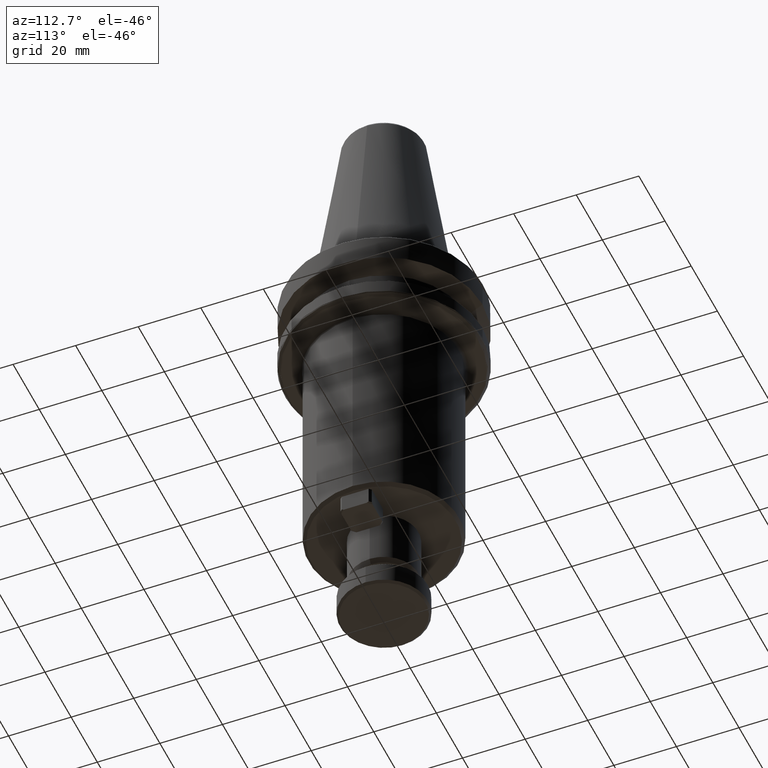
[diagram: clean part render]
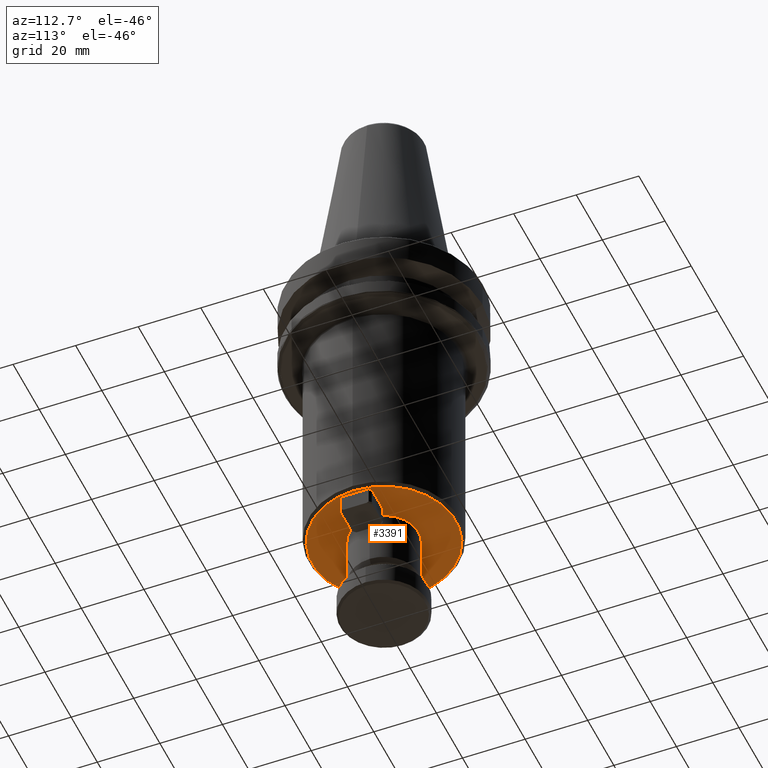
[diagram: same view with one face highlighted and labeled with its STEP entity id]
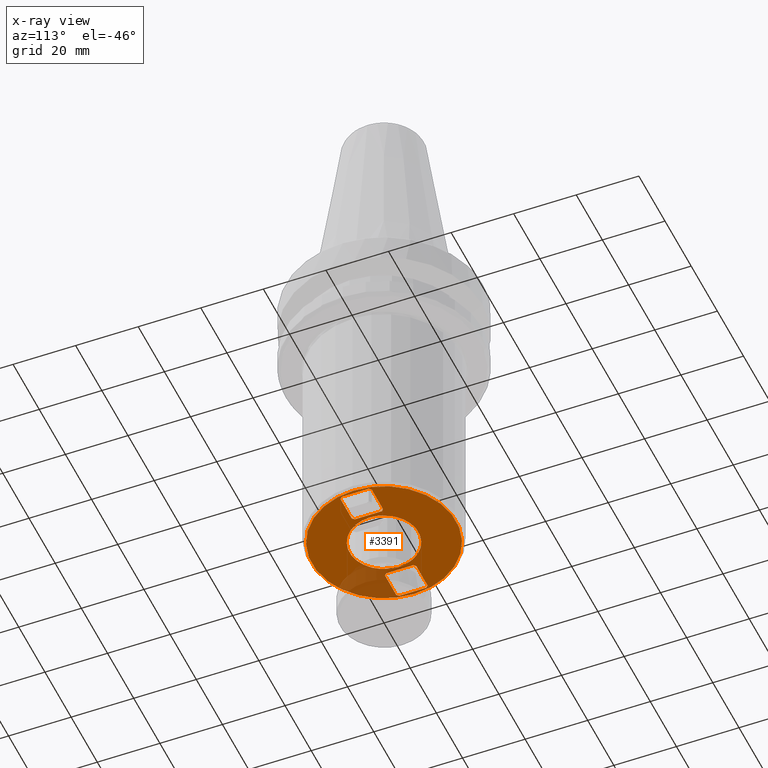
[diagram: x-ray of the same camera — body ghosted, the highlighted face saturated]
A machine part, auxiliary view. The second image highlights one B-rep face of the part: STEP entity #3391.
The next image is the same camera in x-ray: the body ghosted, the highlighted face saturated — about 16% of this face is hidden behind the body in this view.
In plain terms, the highlighted planar face has unit normal (0, 0, 1).
Its self-contained STEP definition (entity closure, byte-faithful):
#5 = DIRECTION ( 'NONE',  ( 0.7071067811865470200, 0.7071067811865479100, 0.0000000000000000000 ) ) ;
#19 = ORIENTED_EDGE ( 'NONE', *, *, #3478, .T. ) ;
#27 = ORIENTED_EDGE ( 'NONE', *, *, #3134, .T. ) ;
#32 = VERTEX_POINT ( 'NONE', #429 ) ;
#34 = EDGE_CURVE ( 'NONE', #3352, #3039, #1690, .T. ) ;
#62 = ORIENTED_EDGE ( 'NONE', *, *, #3319, .F. ) ;
#107 = DIRECTION ( 'NONE',  ( -0.7071067811865470200, 0.7071067811865479100, 0.0000000000000000000 ) ) ;
#109 = ORIENTED_EDGE ( 'NONE', *, *, #2632, .T. ) ;
#156 = CARTESIAN_POINT ( 'NONE',  ( -12.35000000000000000, 4.649999999999999500, -100.0000000000000000 ) ) ;
#180 = CARTESIAN_POINT ( 'NONE',  ( 0.0000000000000000000, 0.0000000000000000000, -100.0000000000000900 ) ) ;
#184 = DIRECTION ( 'NONE',  ( 0.0000000000000000000, -0.0000000000000000000, 1.000000000000000000 ) ) ;
#215 = ORIENTED_EDGE ( 'NONE', *, *, #3264, .F. ) ;
#218 = CIRCLE ( 'NONE', #855, 22.99999999999991500 ) ;
#221 = DIRECTION ( 'NONE',  ( 1.000000000000000000, 0.0000000000000000000, 0.0000000000000000000 ) ) ;
#226 = VERTEX_POINT ( 'NONE', #2216 ) ;
#341 = CARTESIAN_POINT ( 'NONE',  ( 11.99999999750000200, 4.300000000074001100, -100.0000000000000000 ) ) ;
#356 = ORIENTED_EDGE ( 'NONE', *, *, #689, .T. ) ;
#359 = ORIENTED_EDGE ( 'NONE', *, *, #3222, .F. ) ;
#407 = ORIENTED_EDGE ( 'NONE', *, *, #3372, .T. ) ;
#429 = CARTESIAN_POINT ( 'NONE',  ( 12.69999999832399800, -5.000000000897999900, -100.0000000000000000 ) ) ;
#438 = ORIENTED_EDGE ( 'NONE', *, *, #3343, .F. ) ;
#445 = ORIENTED_EDGE ( 'NONE', *, *, #2480, .F. ) ;
#462 = DIRECTION ( 'NONE',  ( -1.000000000000000000, -0.0000000000000000000, -0.0000000000000000000 ) ) ;
#483 = CARTESIAN_POINT ( 'NONE',  ( 0.0000000000000000000, -5.000000003591999600, -100.0000000000000000 ) ) ;
#487 = VERTEX_POINT ( 'NONE', #1906 ) ;
#500 = ORIENTED_EDGE ( 'NONE', *, *, #3127, .F. ) ;
#571 = CARTESIAN_POINT ( 'NONE',  ( 21.29999999847200000, -5.000000000897999900, -100.0000000000000000 ) ) ;
#580 = CARTESIAN_POINT ( 'NONE',  ( -21.99999999718400200, 0.0000000000000000000, -100.0000000000000000 ) ) ;
#600 = CARTESIAN_POINT ( 'NONE',  ( 0.0000000000000000000, 0.0000000000000000000, -100.0000000000000100 ) ) ;
#616 = DIRECTION ( 'NONE',  ( 0.0000000000000000000, 1.000000000000000000, 0.0000000000000000000 ) ) ;
#689 = EDGE_CURVE ( 'NONE', #2090, #1976, #1414, .T. ) ;
#709 = DIRECTION ( 'NONE',  ( -0.0000000000000000000, -1.000000000000000000, -0.0000000000000000000 ) ) ;
#737 = CARTESIAN_POINT ( 'NONE',  ( -11.99999998999999900, 0.0000000000000000000, -100.0000000000000100 ) ) ;
#785 = CARTESIAN_POINT ( 'NONE',  ( 0.0000000000000000000, 5.000000003591999600, -100.0000000000000000 ) ) ;
#790 = DIRECTION ( 'NONE',  ( 0.7071067811865470200, 0.7071067811865479100, 0.0000000000000000000 ) ) ;
#823 = DIRECTION ( 'NONE',  ( 1.000000000000000000, 0.0000000000000000000, 0.0000000000000000000 ) ) ;
#832 = CARTESIAN_POINT ( 'NONE',  ( 11.00000000000000000, 0.0000000000000000000, -100.0000000000000100 ) ) ;
#834 = CARTESIAN_POINT ( 'NONE',  ( 0.0000000000000000000, -5.000000003591999600, -100.0000000000000000 ) ) ;
#855 = AXIS2_PLACEMENT_3D ( 'NONE', #1646, #1648, #1651 ) ;
#856 = DIRECTION ( 'NONE',  ( -1.000000000000000000, -0.0000000000000000000, -0.0000000000000000000 ) ) ;
#927 = AXIS2_PLACEMENT_3D ( 'NONE', #2169, #2326, #2373 ) ;
#954 = AXIS2_PLACEMENT_3D ( 'NONE', #2729, #1806, #1789 ) ;
#975 = CARTESIAN_POINT ( 'NONE',  ( -21.29999999847200000, 5.000000000897999900, -100.0000000000000000 ) ) ;
#1135 = EDGE_LOOP ( 'NONE', ( #3900, #19 ) ) ;
#1213 = AXIS2_PLACEMENT_3D ( 'NONE', #180, #184, #221 ) ;
#1245 = VERTEX_POINT ( 'NONE', #975 ) ;
#1312 = CARTESIAN_POINT ( 'NONE',  ( -12.69999999832400000, -5.000000000897999900, -100.0000000000000000 ) ) ;
#1399 = VECTOR ( 'NONE', #2974, 1000.000000000000100 ) ;
#1414 = LINE ( 'NONE', #2977, #1399 ) ;
#1498 = CARTESIAN_POINT ( 'NONE',  ( -12.35000000000000000, -4.649999999999999500, -100.0000000000000000 ) ) ;
#1592 = CARTESIAN_POINT ( 'NONE',  ( -11.99999999750000000, 4.300000000074002000, -100.0000000000000000 ) ) ;
#1646 = CARTESIAN_POINT ( 'NONE',  ( 0.0000000000000000000, 0.0000000000000000000, -100.0000000000000900 ) ) ;
#1648 = DIRECTION ( 'NONE',  ( 0.0000000000000000000, -0.0000000000000000000, 1.000000000000000000 ) ) ;
#1651 = DIRECTION ( 'NONE',  ( 1.000000000000000000, 0.0000000000000000000, 0.0000000000000000000 ) ) ;
#1665 = CARTESIAN_POINT ( 'NONE',  ( 21.29999999847200000, 5.000000000897999900, -100.0000000000000000 ) ) ;
#1683 = PLANE ( 'NONE',  #954 ) ;
#1690 = CIRCLE ( 'NONE', #3564, 11.00000000000000000 ) ;
#1709 = CARTESIAN_POINT ( 'NONE',  ( -21.99999999929599800, -4.300000000074000200, -100.0000000000000000 ) ) ;
#1731 = DIRECTION ( 'NONE',  ( 1.000000000000000000, 0.0000000000000000000, 0.0000000000000000000 ) ) ;
#1740 = LINE ( 'NONE', #1832, #1764 ) ;
#1764 = VECTOR ( 'NONE', #1834, 1000.000000000000100 ) ;
#1789 = DIRECTION ( 'NONE',  ( 1.000000000000000000, 0.0000000000000000000, 0.0000000000000000000 ) ) ;
#1798 = CARTESIAN_POINT ( 'NONE',  ( 11.99999999750000200, -4.300000000074000200, -100.0000000000000000 ) ) ;
#1806 = DIRECTION ( 'NONE',  ( 0.0000000000000000000, 0.0000000000000000000, 1.000000000000000000 ) ) ;
#1815 = FACE_BOUND ( 'NONE', #3824, .T. ) ;
#1821 = DIRECTION ( 'NONE',  ( -0.7071067811865470200, 0.7071067811865479100, 0.0000000000000000000 ) ) ;
#1832 = CARTESIAN_POINT ( 'NONE',  ( -21.64999999999999900, 4.649999999999999500, -100.0000000000000000 ) ) ;
#1834 = DIRECTION ( 'NONE',  ( -0.7071067811865470200, -0.7071067811865479100, 0.0000000000000000000 ) ) ;
#1839 = CARTESIAN_POINT ( 'NONE',  ( 21.64999999999999900, 4.649999999999999500, -100.0000000000000000 ) ) ;
#1870 = CARTESIAN_POINT ( 'NONE',  ( 11.99999999000000600, 0.0000000000000000000, -100.0000000000000000 ) ) ;
#1885 = VERTEX_POINT ( 'NONE', #3095 ) ;
#1906 = CARTESIAN_POINT ( 'NONE',  ( 12.69999999832399800, 5.000000000897999900, -100.0000000000000000 ) ) ;
#1976 = VERTEX_POINT ( 'NONE', #2914 ) ;
#1977 = CARTESIAN_POINT ( 'NONE',  ( 21.99999999718399800, 0.0000000000000000000, -100.0000000000000000 ) ) ;
#2009 = CARTESIAN_POINT ( 'NONE',  ( 0.0000000000000000000, 5.000000003591999600, -100.0000000000000000 ) ) ;
#2011 = LINE ( 'NONE', #3600, #2155 ) ;
#2051 = DIRECTION ( 'NONE',  ( 0.0000000000000000000, -0.0000000000000000000, 1.000000000000000000 ) ) ;
#2071 = CARTESIAN_POINT ( 'NONE',  ( 21.99999999929599800, -4.300000000073999300, -100.0000000000000000 ) ) ;
#2072 = EDGE_LOOP ( 'NONE', ( #445, #500 ) ) ;
#2073 = EDGE_LOOP ( 'NONE', ( #3535, #3577, #3661, #3697, #3726, #3755, #3817, #3857 ) ) ;
#2090 = VERTEX_POINT ( 'NONE', #1709 ) ;
#2100 = LINE ( 'NONE', #3194, #2107 ) ;
#2107 = VECTOR ( 'NONE', #3283, 1000.000000000000100 ) ;
#2124 = VERTEX_POINT ( 'NONE', #1665 ) ;
#2151 = LINE ( 'NONE', #3709, #2608 ) ;
#2154 = DIRECTION ( 'NONE',  ( -0.0000000000000000000, -1.000000000000000000, -0.0000000000000000000 ) ) ;
#2155 = VECTOR ( 'NONE', #3648, 1000.000000000000100 ) ;
#2164 = VERTEX_POINT ( 'NONE', #1592 ) ;
#2169 = CARTESIAN_POINT ( 'NONE',  ( 0.0000000000000000000, 0.0000000000000000000, -100.0000000000000100 ) ) ;
#2196 = CIRCLE ( 'NONE', #1213, 22.99999999999991500 ) ;
#2216 = CARTESIAN_POINT ( 'NONE',  ( 22.99999999999991500, 0.0000000000000000000, -100.0000000000000900 ) ) ;
#2231 = LINE ( 'NONE', #156, #2232 ) ;
#2232 = VECTOR ( 'NONE', #107, 1000.000000000000100 ) ;
#2317 = DIRECTION ( 'NONE',  ( 0.0000000000000000000, 1.000000000000000000, 0.0000000000000000000 ) ) ;
#2319 = VERTEX_POINT ( 'NONE', #1312 ) ;
#2326 = DIRECTION ( 'NONE',  ( 0.0000000000000000000, -0.0000000000000000000, 1.000000000000000000 ) ) ;
#2335 = VECTOR ( 'NONE', #462, 1000.000000000000000 ) ;
#2337 = LINE ( 'NONE', #483, #2335 ) ;
#2344 = VECTOR ( 'NONE', #616, 1000.000000000000000 ) ;
#2348 = LINE ( 'NONE', #580, #2344 ) ;
#2364 = LINE ( 'NONE', #785, #2453 ) ;
#2371 = DIRECTION ( 'NONE',  ( 1.000000000000000000, 0.0000000000000000000, 0.0000000000000000000 ) ) ;
#2373 = DIRECTION ( 'NONE',  ( 1.000000000000000000, 0.0000000000000000000, 0.0000000000000000000 ) ) ;
#2398 = LINE ( 'NONE', #737, #2413 ) ;
#2407 = VECTOR ( 'NONE', #2317, 1000.000000000000000 ) ;
#2410 = CARTESIAN_POINT ( 'NONE',  ( -11.99999999750000000, -4.300000000073999300, -100.0000000000000000 ) ) ;
#2413 = VECTOR ( 'NONE', #709, 1000.000000000000000 ) ;
#2453 = VECTOR ( 'NONE', #823, 1000.000000000000000 ) ;
#2480 = EDGE_CURVE ( 'NONE', #226, #2991, #218, .T. ) ;
#2516 = LINE ( 'NONE', #834, #2522 ) ;
#2522 = VECTOR ( 'NONE', #856, 1000.000000000000000 ) ;
#2551 = LINE ( 'NONE', #1498, #2554 ) ;
#2554 = VECTOR ( 'NONE', #790, 1000.000000000000100 ) ;
#2559 = FACE_OUTER_BOUND ( 'NONE', #2072, .T. ) ;
#2608 = VECTOR ( 'NONE', #5, 1000.000000000000100 ) ;
#2616 = VERTEX_POINT ( 'NONE', #1798 ) ;
#2628 = FACE_BOUND ( 'NONE', #1135, .T. ) ;
#2632 = EDGE_CURVE ( 'NONE', #1245, #3860, #1740, .T. ) ;
#2665 = FACE_BOUND ( 'NONE', #2073, .T. ) ;
#2670 = LINE ( 'NONE', #1870, #2407 ) ;
#2684 = LINE ( 'NONE', #1839, #2722 ) ;
#2717 = LINE ( 'NONE', #2009, #2726 ) ;
#2722 = VECTOR ( 'NONE', #1821, 1000.000000000000100 ) ;
#2726 = VECTOR ( 'NONE', #1731, 1000.000000000000000 ) ;
#2729 = CARTESIAN_POINT ( 'NONE',  ( -23.27600000000000000, -23.27600000000000000, -100.0000000000000000 ) ) ;
#2737 = LINE ( 'NONE', #1977, #2744 ) ;
#2744 = VECTOR ( 'NONE', #2154, 1000.000000000000000 ) ;
#2783 = CIRCLE ( 'NONE', #927, 11.00000000000000000 ) ;
#2914 = CARTESIAN_POINT ( 'NONE',  ( -21.29999999847200000, -5.000000000897999900, -100.0000000000000000 ) ) ;
#2974 = DIRECTION ( 'NONE',  ( 0.7071067811865470200, -0.7071067811865479100, 0.0000000000000000000 ) ) ;
#2977 = CARTESIAN_POINT ( 'NONE',  ( -21.64999999999999900, -4.649999999999999500, -100.0000000000000000 ) ) ;
#2991 = VERTEX_POINT ( 'NONE', #3017 ) ;
#3017 = CARTESIAN_POINT ( 'NONE',  ( -22.99999999999991500, 2.877919977996275200E-015, -100.0000000000000900 ) ) ;
#3039 = VERTEX_POINT ( 'NONE', #3154 ) ;
#3040 = EDGE_CURVE ( 'NONE', #2616, #32, #2100, .T. ) ;
#3074 = EDGE_CURVE ( 'NONE', #487, #3226, #2011, .T. ) ;
#3095 = CARTESIAN_POINT ( 'NONE',  ( 21.99999999929599800, 4.300000000074002000, -100.0000000000000000 ) ) ;
#3098 = CARTESIAN_POINT ( 'NONE',  ( -12.69999999832400000, 5.000000000897999900, -100.0000000000000000 ) ) ;
#3111 = EDGE_CURVE ( 'NONE', #3241, #3458, #2151, .T. ) ;
#3127 = EDGE_CURVE ( 'NONE', #2991, #226, #2196, .T. ) ;
#3134 = EDGE_CURVE ( 'NONE', #2164, #3678, #2231, .T. ) ;
#3154 = CARTESIAN_POINT ( 'NONE',  ( -11.00000000000000000, 1.347111479062088400E-015, -100.0000000000000100 ) ) ;
#3194 = CARTESIAN_POINT ( 'NONE',  ( 12.35000000000000000, -4.649999999999999500, -100.0000000000000000 ) ) ;
#3222 = EDGE_CURVE ( 'NONE', #2319, #1976, #2337, .T. ) ;
#3226 = VERTEX_POINT ( 'NONE', #341 ) ;
#3241 = VERTEX_POINT ( 'NONE', #571 ) ;
#3264 = EDGE_CURVE ( 'NONE', #2090, #3860, #2348, .T. ) ;
#3283 = DIRECTION ( 'NONE',  ( 0.7071067811865470200, -0.7071067811865479100, 0.0000000000000000000 ) ) ;
#3319 = EDGE_CURVE ( 'NONE', #1245, #3678, #2364, .T. ) ;
#3343 = EDGE_CURVE ( 'NONE', #2164, #3543, #2398, .T. ) ;
#3350 = EDGE_CURVE ( 'NONE', #3241, #32, #2516, .T. ) ;
#3352 = VERTEX_POINT ( 'NONE', #832 ) ;
#3372 = EDGE_CURVE ( 'NONE', #2319, #3543, #2551, .T. ) ;
#3391 = ADVANCED_FACE ( 'NONE', ( #2665, #2628, #1815, #2559 ), #1683, .F. ) ;
#3412 = EDGE_CURVE ( 'NONE', #2616, #3226, #2670, .T. ) ;
#3435 = EDGE_CURVE ( 'NONE', #1885, #2124, #2684, .T. ) ;
#3457 = EDGE_CURVE ( 'NONE', #487, #2124, #2717, .T. ) ;
#3458 = VERTEX_POINT ( 'NONE', #2071 ) ;
#3464 = EDGE_CURVE ( 'NONE', #1885, #3458, #2737, .T. ) ;
#3478 = EDGE_CURVE ( 'NONE', #3039, #3352, #2783, .T. ) ;
#3535 = ORIENTED_EDGE ( 'NONE', *, *, #3435, .T. ) ;
#3543 = VERTEX_POINT ( 'NONE', #2410 ) ;
#3564 = AXIS2_PLACEMENT_3D ( 'NONE', #600, #2051, #2371 ) ;
#3577 = ORIENTED_EDGE ( 'NONE', *, *, #3457, .F. ) ;
#3600 = CARTESIAN_POINT ( 'NONE',  ( 12.35000000000000000, 4.649999999999999500, -100.0000000000000000 ) ) ;
#3648 = DIRECTION ( 'NONE',  ( -0.7071067811865470200, -0.7071067811865479100, 0.0000000000000000000 ) ) ;
#3661 = ORIENTED_EDGE ( 'NONE', *, *, #3074, .T. ) ;
#3678 = VERTEX_POINT ( 'NONE', #3098 ) ;
#3697 = ORIENTED_EDGE ( 'NONE', *, *, #3412, .F. ) ;
#3709 = CARTESIAN_POINT ( 'NONE',  ( 21.64999999999999900, -4.649999999999999500, -100.0000000000000000 ) ) ;
#3712 = CARTESIAN_POINT ( 'NONE',  ( -21.99999999929599800, 4.300000000074002000, -100.0000000000000000 ) ) ;
#3726 = ORIENTED_EDGE ( 'NONE', *, *, #3040, .T. ) ;
#3755 = ORIENTED_EDGE ( 'NONE', *, *, #3350, .F. ) ;
#3817 = ORIENTED_EDGE ( 'NONE', *, *, #3111, .T. ) ;
#3824 = EDGE_LOOP ( 'NONE', ( #27, #62, #109, #215, #356, #359, #407, #438 ) ) ;
#3857 = ORIENTED_EDGE ( 'NONE', *, *, #3464, .F. ) ;
#3860 = VERTEX_POINT ( 'NONE', #3712 ) ;
#3900 = ORIENTED_EDGE ( 'NONE', *, *, #34, .T. ) ;